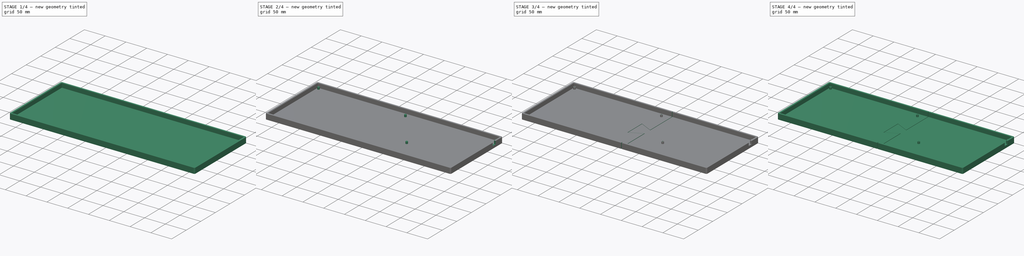
[diagram: build sequence overview — one tinted view per stage of 4, left to right]
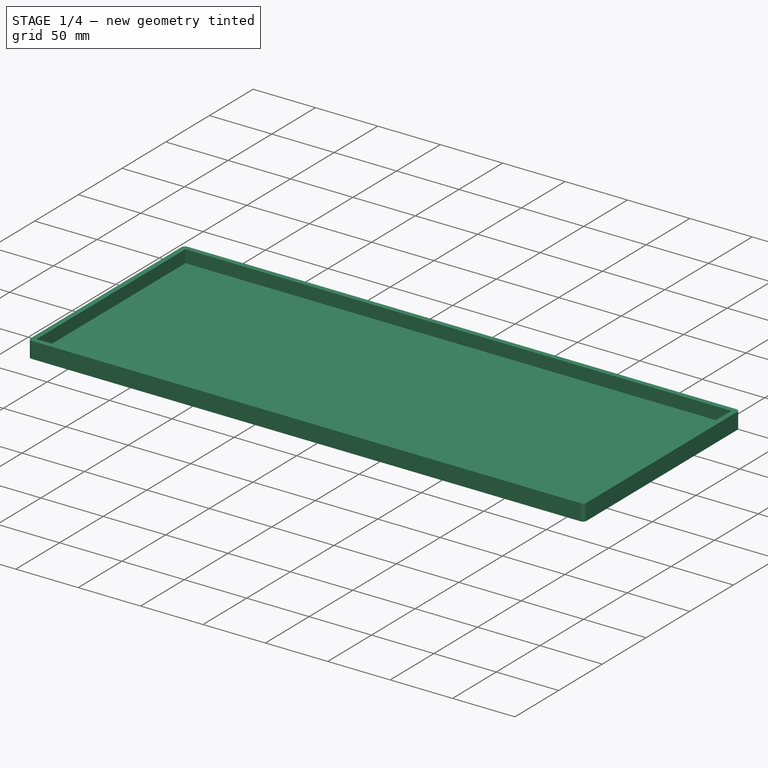
[diagram: stage 1 of 4 — iso view after this stage's code; geometry added in this stage tinted green]
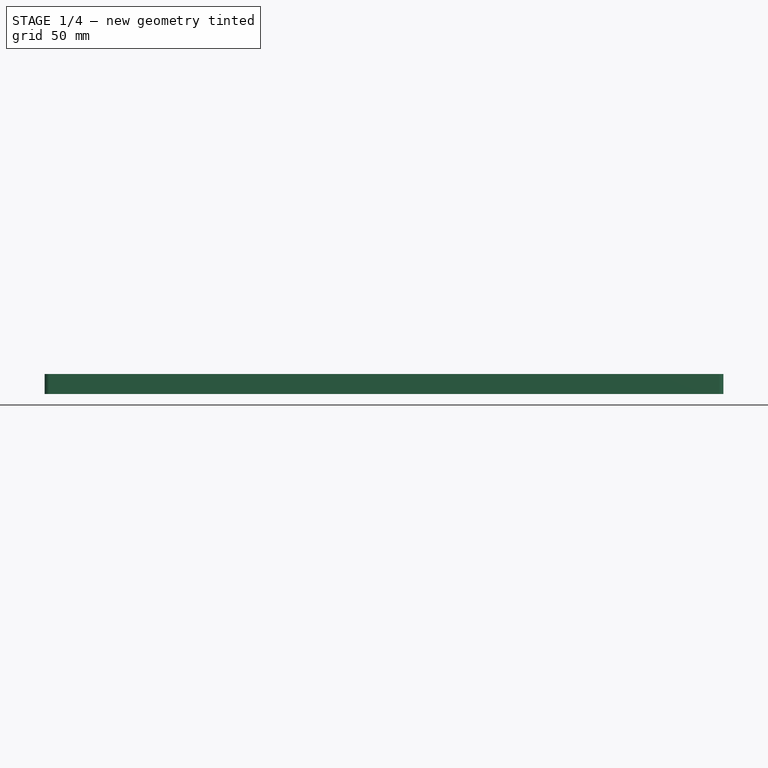
[diagram: stage 1 of 4 — front view after this stage's code; geometry added in this stage tinted green]
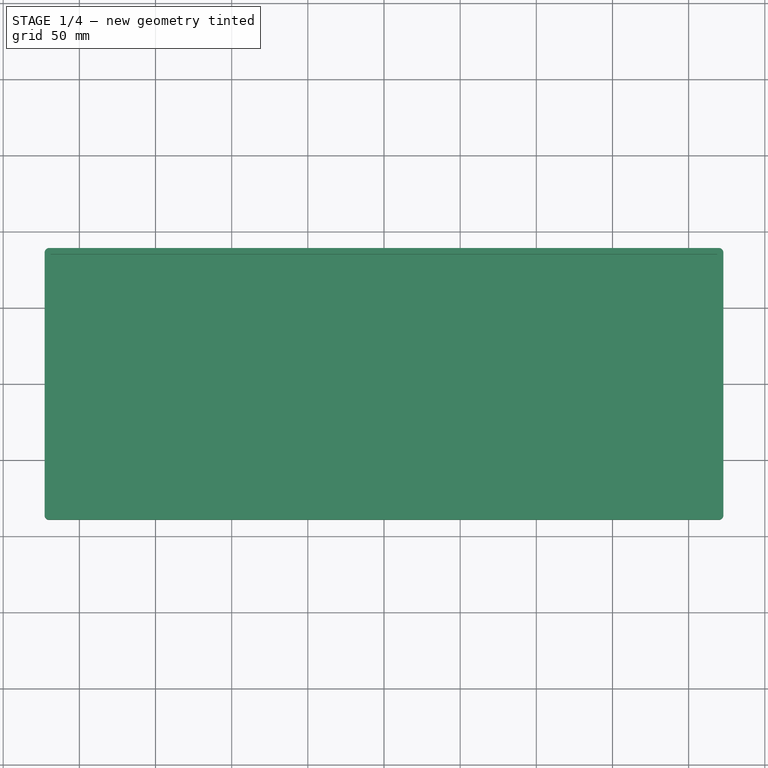
[diagram: stage 1 of 4 — top view after this stage's code; geometry added in this stage tinted green]
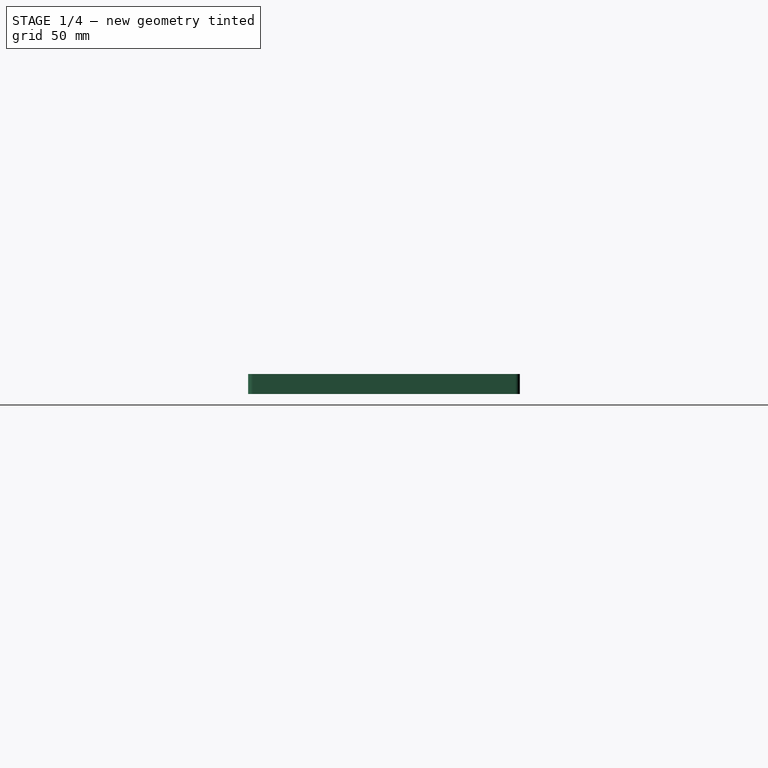
[diagram: stage 1 of 4 — right view after this stage's code; geometry added in this stage tinted green]
FCSTD DOCUMENT  (FreeCAD 1.1R20260223 (Git shallow))
Label: Case_bottom
License: All rights reserved
LicenseURL: https://en.wikipedia.org/wiki/All_rights_reserved
objects: Sketcher::SketchObject×6, PartDesign::Pocket×4, PartDesign::Pad×2, PartDesign::Body×2, Part::FeaturePython×2, App::Point×2, Spreadsheet::Sheet×1, PartDesign::FeatureBase×1, App::DocumentObjectGroup×1
note: 36 computed .brp shape members not serialized (recipe doc carries the construction recipe); baked Part::Feature solids carry a one-line shape summary decoded from their .brp

FEATURE [Sketcher::SketchObject] Sketch
  ArcFitTolerance = 1e-06
  AttachmentSupport = -> [XY_Plane]
  ExternalTypes = [0]
  FullyConstrained = true
  MakeInternals = false
  MapMode = 5
  expr: Constraints[26] = <<globals>>.Filet
  expr: Constraints[4] = <<globals>>.OutsideWidth
  expr: Constraints[5] = <<globals>>.OutsideLength
  sketch-geometry (12):
    g0: LineSegment StartX=-219.8 StartY=-89.2 StartZ=0 EndX=219.8 EndY=-89.2 EndZ=0
    g1: LineSegment StartX=222.8 StartY=-86.2 StartZ=0 EndX=222.8 EndY=86.2 EndZ=0
    g2: LineSegment StartX=219.8 StartY=89.2 StartZ=0 EndX=-219.8 EndY=89.2 EndZ=0
    g3: LineSegment StartX=-222.8 StartY=86.2 StartZ=0 EndX=-222.8 EndY=-86.2 EndZ=0
    g4: ArcOfCircle CenterX=-219.8 CenterY=-86.2 CenterZ=0 NormalX=0 NormalY=0 NormalZ=1 AngleXU=0 Radius=3 StartAngle=3.14159 EndAngle=4.71239
    g5: GeomPoint [constr] X=-222.8 Y=-89.2 Z=0
    g6: ArcOfCircle CenterX=-219.8 CenterY=86.2 CenterZ=0 NormalX=0 NormalY=0 NormalZ=1 AngleXU=0 Radius=3 StartAngle=1.5708 EndAngle=3.14159
    g7: GeomPoint [constr] X=-222.8 Y=89.2 Z=0
    g8: ArcOfCircle CenterX=219.8 CenterY=86.2 CenterZ=0 NormalX=0 NormalY=0 NormalZ=1 AngleXU=0 Radius=3 StartAngle=-9e-16 EndAngle=1.5708
    g9: GeomPoint [constr] X=222.8 Y=89.2 Z=0
    g10: ArcOfCircle CenterX=219.8 CenterY=-86.2 CenterZ=0 NormalX=0 NormalY=0 NormalZ=1 AngleXU=0 Radius=3 StartAngle=4.71239 EndAngle=6.28319
    g11: GeomPoint [constr] X=222.8 Y=-89.2 Z=0
  constraints (27):
    c: Horizontal(g0)
    c: Horizontal(g2)
    c: Vertical(g1)
    c: Vertical(g3)
    c: Distance(g11,g5) = 445.6
    c: Distance(g5,g7) = 178.4
    c: Symmetric(g7,g11,g-1)
    c: PointOnObject(g5,g0)
    c: PointOnObject(g5,g3)
    c: Tangent(g0,g4) = -1.5708
    c: Tangent(g3,g4) = -1.5708
    c: PointOnObject(g7,g2)
    c: PointOnObject(g7,g3)
    c: Tangent(g2,g6) = -1.5708
    c: Tangent(g3,g6) = -1.5708
    c: PointOnObject(g9,g1)
    c: PointOnObject(g9,g2)
    c: Tangent(g1,g8) = -1.5708
    c: Tangent(g2,g8) = -1.5708
    c: PointOnObject(g11,g0)
    c: PointOnObject(g11,g1)
    c: Tangent(g0,g10) = -1.5708
    c: Tangent(g1,g10) = -1.5708
    c: Equal(g4,g10)
    c: Equal(g4,g6)
    c: Equal(g4,g8)
    c: Radius(g4) = 3
FEATURE [PartDesign::Pad] Pad
  Direction = (0,0,1)
  Length = 13.1
  Length2 = 10
  Profile = -> Sketch
  ReferenceAxis = -> Sketch [N_Axis]
  Refine = true
  SideType = 0
  Suppressed = false
  Type = 0
  Type2 = 0
  expr: Length = <<globals>>.TotalHight
FEATURE [Sketcher::SketchObject] Sketch001
  ArcFitTolerance = 1e-06
  AttachmentSupport = -> [Pad]
  ExternalTypes = [0]
  FullyConstrained = true
  MakeInternals = false
  MapMode = 5
  Placement = pos=(0,0,13.1) rot=(0,0,1;0rad)
  expr: Constraints[9] = <<globals>>.InsideLength
  sketch-geometry (4):
    g0: LineSegment StartX=-218.8 StartY=-85.2 StartZ=0 EndX=218.8 EndY=-85.2 EndZ=0
    g1: LineSegment StartX=218.8 StartY=-85.2 StartZ=0 EndX=218.8 EndY=85.2 EndZ=0
    g2: LineSegment StartX=218.8 StartY=85.2 StartZ=0 EndX=-218.8 EndY=85.2 EndZ=0
    g3: LineSegment StartX=-218.8 StartY=85.2 StartZ=0 EndX=-218.8 EndY=-85.2 EndZ=0
  constraints (11):
    c: Coincident(g0,g1)
    c: Coincident(g1,g2)
    c: Coincident(g2,g3)
    c: Coincident(g3,g0)
    c: Horizontal(g0)
    c: Horizontal(g2)
    c: Vertical(g1)
    c: Vertical(g3)
    c: Distance(g1,g3) = 437.6
    c: Distance(g0,g2) = 170.4
    c: Symmetric(g2,g0,g-1)
FEATURE [PartDesign::Pocket] Pocket
  BaseFeature = -> Pad
  Direction = (0,0,-1)
  Length = 10.1
  Length2 = 5
  Profile = -> Sketch001
  ReferenceAxis = -> Sketch001 [N_Axis]
  Refine = true
  SideType = 0
  Suppressed = false
  Type = 0
  Type2 = 0
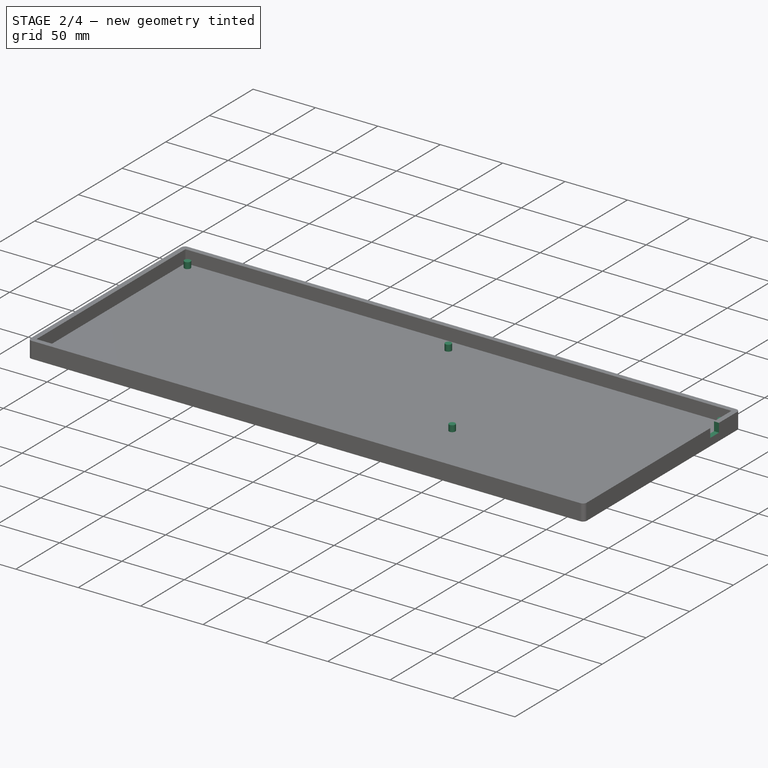
[diagram: stage 2 of 4 — iso view after this stage's code; geometry added in this stage tinted green]
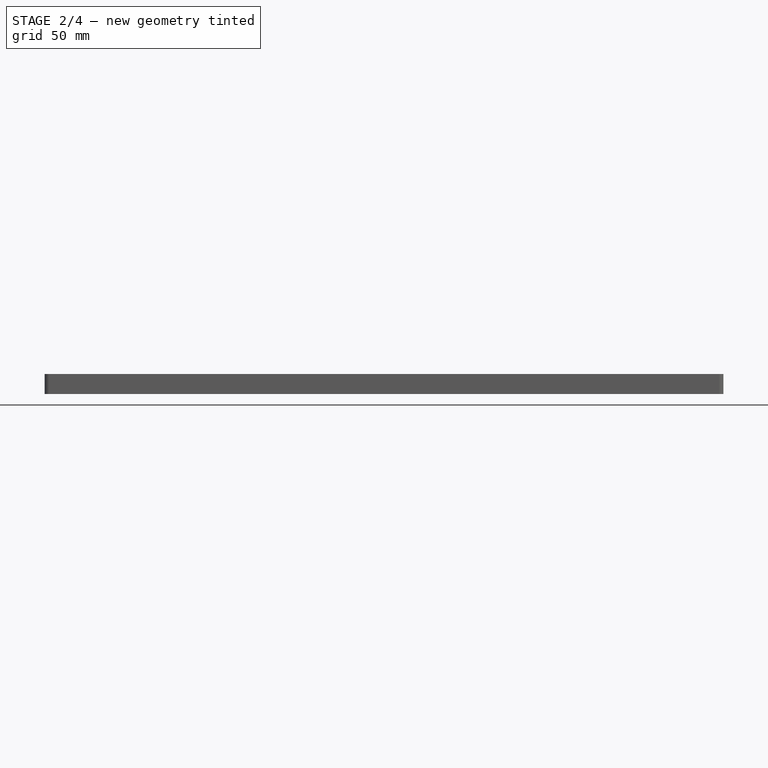
[diagram: stage 2 of 4 — front view after this stage's code; geometry added in this stage tinted green]
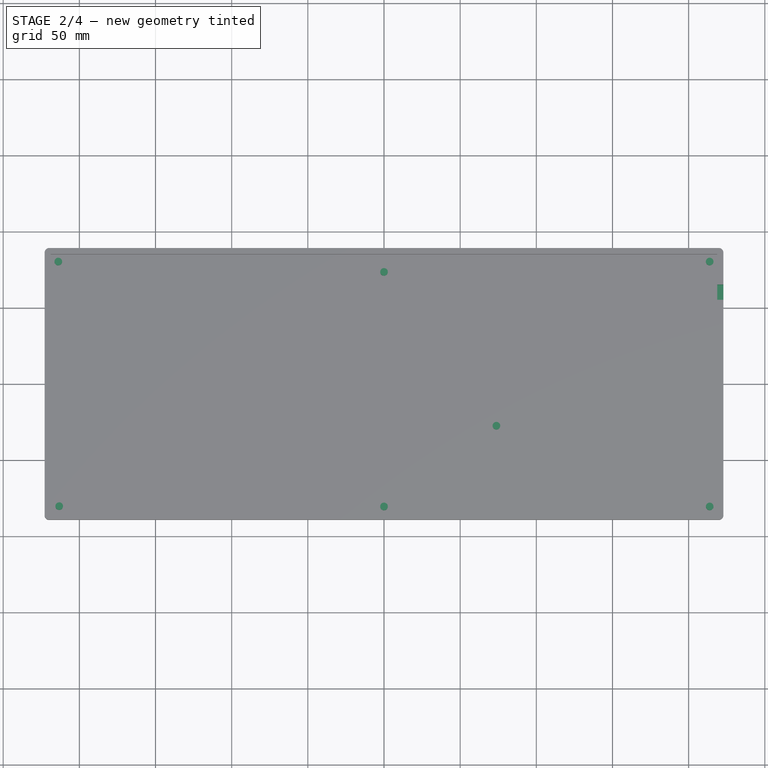
[diagram: stage 2 of 4 — top view after this stage's code; geometry added in this stage tinted green]
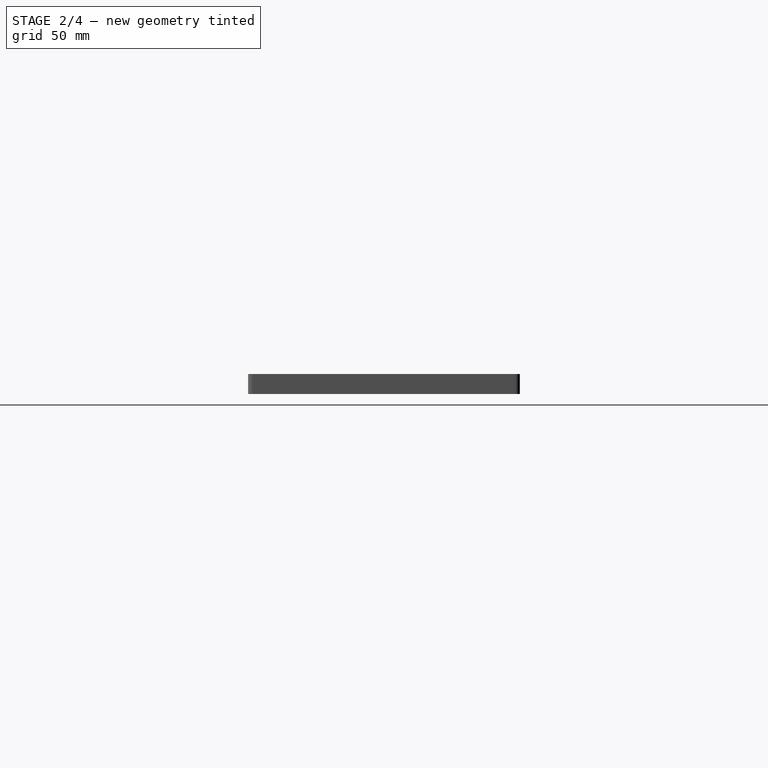
[diagram: stage 2 of 4 — right view after this stage's code; geometry added in this stage tinted green]
FEATURE [Sketcher::SketchObject] Sketch002
  ArcFitTolerance = 1e-06
  AttachmentSupport = -> [Pocket]
  ExternalGeometry = -> [Pocket]
  ExternalTypes = [0]
  FullyConstrained = true
  MakeInternals = false
  MapMode = 5
  Placement = pos=(0,0,3) rot=(0,0,1;0rad)
  expr: Constraints[0] = <<globals>>.StandoffOD
  expr: Constraints[14] = <<globals>>.InsideLength
  expr: Constraints[15] = <<globals>>.InsideWidth
  sketch-geometry (25):
    g0: Circle CenterX=5e-15 CenterY=-80.4 CenterZ=0 NormalX=0 NormalY=0 NormalZ=1 AngleXU=0 Radius=2.5
    g1: Circle CenterX=-213.8 CenterY=80.4 CenterZ=0 NormalX=0 NormalY=0 NormalZ=1 AngleXU=0 Radius=2.5
    g2: Circle CenterX=6.3e-15 CenterY=73.6 CenterZ=0 NormalX=0 NormalY=0 NormalZ=1 AngleXU=0 Radius=2.5
    g3: Circle CenterX=-213.2 CenterY=-80.2 CenterZ=0 NormalX=0 NormalY=0 NormalZ=1 AngleXU=0 Radius=2.5
    g4: Circle CenterX=213.8 CenterY=-80.4 CenterZ=0 NormalX=0 NormalY=0 NormalZ=1 AngleXU=0 Radius=2.5
    g5: Circle CenterX=213.8 CenterY=80.4 CenterZ=0 NormalX=0 NormalY=0 NormalZ=1 AngleXU=0 Radius=2.5
    g6: LineSegment [constr] StartX=-218.8 StartY=85.2 StartZ=0 EndX=-218.8 EndY=-85.2 EndZ=0
    g7: LineSegment [constr] StartX=-218.8 StartY=-85.2 StartZ=0 EndX=218.8 EndY=-85.2 EndZ=0
    g8: LineSegment [constr] StartX=218.8 StartY=-85.2 StartZ=0 EndX=218.8 EndY=85.2 EndZ=0
    g9: LineSegment [constr] StartX=218.8 StartY=85.2 StartZ=0 EndX=-218.8 EndY=85.2 EndZ=0
    g10: LineSegment [constr] StartX=-218.8 StartY=-80.2 StartZ=0 EndX=-213.2 EndY=-80.2 EndZ=0
    g11: LineSegment [constr] StartX=-213.2 StartY=-80.2 StartZ=0 EndX=-213.2 EndY=-85.2 EndZ=0
    g12: LineSegment [constr] StartX=-218.8 StartY=80.4 StartZ=0 EndX=-213.8 EndY=80.4 EndZ=0
    g13: LineSegment [constr] StartX=-213.8 StartY=80.4 StartZ=0 EndX=-213.8 EndY=85.2 EndZ=0
    g14: LineSegment [constr] StartX=213.8 StartY=-80.4 StartZ=0 EndX=218.8 EndY=-80.4 EndZ=0
    g15: LineSegment [constr] StartX=213.8 StartY=-80.4 StartZ=0 EndX=213.8 EndY=-85.2 EndZ=0
    g16: LineSegment [constr] StartX=213.8 StartY=80.4 StartZ=0 EndX=218.8 EndY=80.4 EndZ=0
    g17: LineSegment [constr] StartX=213.8 StartY=80.4 StartZ=0 EndX=213.8 EndY=85.2 EndZ=0
    g18: Circle CenterX=73.8 CenterY=-27.4 CenterZ=0 NormalX=0 NormalY=0 NormalZ=1 AngleXU=0 Radius=2.5
    g19: LineSegment [constr] StartX=5e-15 StartY=-80.4 StartZ=0 EndX=5e-15 EndY=-85.2 EndZ=0
    g20: LineSegment [constr] StartX=5e-15 StartY=-80.4 StartZ=0 EndX=218.8 EndY=-80.4 EndZ=0
    g21: LineSegment [constr] StartX=73.8 StartY=-27.4 StartZ=0 EndX=218.8 EndY=-27.4 EndZ=0
    g22: LineSegment [constr] StartX=73.8 StartY=-27.4 StartZ=0 EndX=73.8 EndY=-85.2 EndZ=0
    g23: LineSegment [constr] StartX=6.3e-15 StartY=73.6 StartZ=0 EndX=6.3e-15 EndY=85.2 EndZ=0
    g24: LineSegment [constr] StartX=6.3e-15 StartY=73.6 StartZ=0 EndX=-218.8 EndY=73.6 EndZ=0
  constraints (72):
    c: Diameter(g0) = 5
    c: Diameter(g1) = 5
    c: Diameter(g2) = 5
    c: Diameter(g3) = 5
    c: Diameter(g4) = 5
    c: Diameter(g5) = 5
    c: Coincident(g6,g7)
    c: Coincident(g7,g8)
    c: Coincident(g8,g9)
    c: Coincident(g9,g6)
    c: Vertical(g6)
    c: Vertical(g8)
    c: Horizontal(g7)
    c: Horizontal(g9)
    c: Distance(g6,g6) = 170.4
    c: DistanceX(g9,g9) = 437.6
    c: Symmetric(g8,g6,g-1)
    c: PointOnObject(g10,g6)
    c: Coincident(g10,g3)
    c: Coincident(g11,g3)
    c: PointOnObject(g11,g7)
    c: Vertical(g11)
    c: DistanceX(g10,g10) = 5.6
    c: DistanceY(g11,g11) = 5
    c: Horizontal(g10)
    c: PointOnObject(g12,g6)
    c: Coincident(g12,g1)
    c: Horizontal(g12)
    c: DistanceX(g12,g12) = 5
    c: Coincident(g13,g1)
    c: PointOnObject(g13,g9)
    c: Vertical(g13)
    c: DistanceY(g13,g13) = 4.8
    c: Coincident(g14,g4)
    c: PointOnObject(g14,g8)
    c: Coincident(g15,g4)
    c: PointOnObject(g15,g7)
    c: Vertical(g15)
    c: Horizontal(g14)
    c: DistanceX(g14,g14) = 5
    c: DistanceY(g15,g15) = 4.8
    c: Coincident(g16,g5)
    c: PointOnObject(g16,g8)
    c: Horizontal(g16)
    c: Coincident(g17,g5)
    c: PointOnObject(g17,g9)
    c: Vertical(g17)
    c: DistanceY(g17,g17) = 4.8
    c: DistanceX(g16,g16) = 5
    c: Diameter(g18) = 5
    c: Coincident(g19,g0)
    c: Symmetric(g7,g7,g19)
    c: Vertical(g19)
    c: Coincident(g20,g0)
    c: PointOnObject(g20,g8)
    c: Horizontal(g20)
    c: DistanceY(g19,g19) = 4.8
    c: Coincident(g21,g18)
    c: PointOnObject(g21,g8)
    c: Horizontal(g21)
    c: Coincident(g22,g18)
    c: PointOnObject(g22,g7)
    c: Vertical(g22)
    c: DistanceX(g21,g21) = 145
    c: DistanceY(g22,g22) = 57.8
    c: Coincident(g23,g2)
    c: Symmetric(g9,g9,g23)
    c: Vertical(g23)
    c: Coincident(g24,g2)
    c: PointOnObject(g24,g6)
    c: Horizontal(g24)
    c: DistanceY(g23,g23) = 11.6
FEATURE [Spreadsheet::Sheet] Spreadsheet  label="globals"
  cells = A1='outside width; B1(OutsideWidth)==445.6 mm; A2='outside length; B2(OutsideLength)==178.4 mm; A3='inside width; B3(InsideWidth)==437.6 mm; A4='inside length; B4(InsideLength)==170.4 mm; A5='filet; B5(Filet)==3 mm; A6='standoff hight; B6(StandoffHight)==5 mm; A7='Total hight; B7(TotalHight)==13.1 mm; A8='Standoff Outer Diamator; B8(StandoffOD)==5 mm; A9='Standoff Inner Diamator; B9(StandoffID)==2.1 mm
FEATURE [PartDesign::Pad] Pad001
  BaseFeature = -> Pocket
  Direction = (0,0,1)
  Length = 5
  Length2 = 10
  Profile = -> Sketch002
  ReferenceAxis = -> Sketch002 [N_Axis]
  Refine = true
  SideType = 0
  Suppressed = false
  Type = 0
  Type2 = 0
  expr: Length = <<globals>>.StandoffHight
FEATURE [Sketcher::SketchObject] Sketch003
  ArcFitTolerance = 1e-06
  AttachmentSupport = -> [Pad001]
  ExternalGeometry = -> [Pad001]
  ExternalTypes = [0]
  FullyConstrained = true
  MakeInternals = false
  MapMode = 5
  Placement = pos=(222.8,0,0) rot=(0.57735,0.57735,0.57735;2.0944rad)
  sketch-geometry (6):
    g0: LineSegment StartX=55.2 StartY=14 StartZ=0 EndX=55.2 EndY=6 EndZ=0
    g1: LineSegment StartX=55.2 StartY=6 StartZ=0 EndX=65.2 EndY=6 EndZ=0
    g2: LineSegment StartX=65.2 StartY=6 StartZ=0 EndX=65.2 EndY=14 EndZ=0
    g3: LineSegment StartX=65.2 StartY=14 StartZ=0 EndX=55.2 EndY=14 EndZ=0
    g4: LineSegment [constr] StartX=65.2 StartY=14 StartZ=0 EndX=89.2 EndY=14 EndZ=0
    g5: LineSegment [constr] StartX=65.2 StartY=6 StartZ=0 EndX=65.2 EndY=0 EndZ=0
  constraints (18):
    c: Coincident(g0,g1)
    c: Coincident(g1,g2)
    c: Coincident(g2,g3)
    c: Coincident(g3,g0)
    c: Vertical(g0)
    c: Vertical(g2)
    c: Horizontal(g1)
    c: Horizontal(g3)
    c: Distance(g0,g2) = 10
    c: Distance(g1,g3) = 8
    c: Coincident(g4,g2)
    c: PointOnObject(g4,g-3)
    c: Horizontal(g4)
    c: DistanceX(g4,g4) = 24
    c: Coincident(g5,g1)
    c: PointOnObject(g5,g-5)
    c: Vertical(g5)
    c: DistanceY(g5,g5) = 6
FEATURE [PartDesign::Pocket] Pocket001
  BaseFeature = -> Pad001
  Direction = (-1,0,0)
  Length = 5
  Length2 = 5
  Profile = -> Sketch003
  ReferenceAxis = -> Sketch003 [N_Axis]
  Refine = true
  SideType = 0
  Suppressed = false
  Type = 0
  Type2 = 0
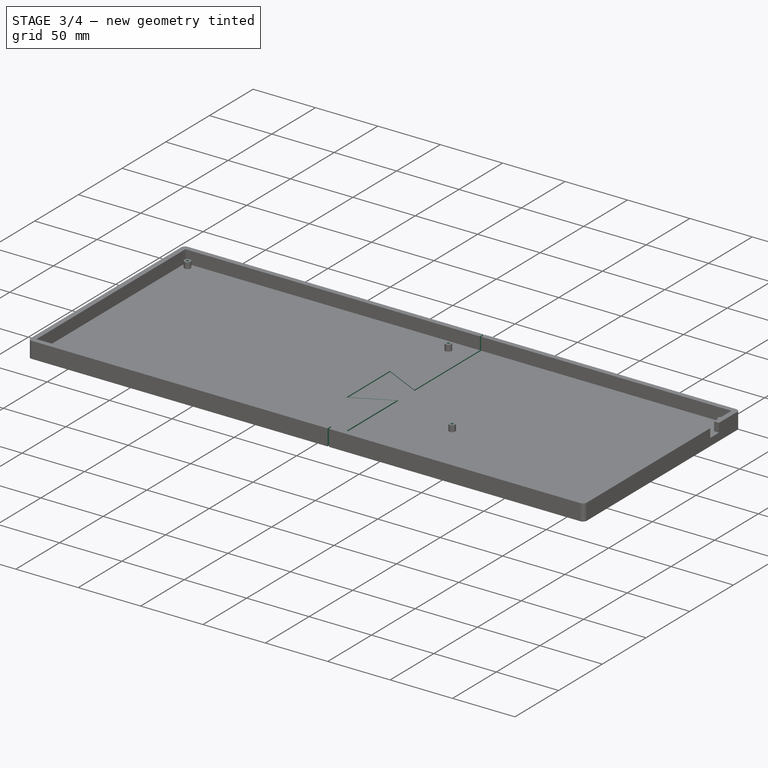
[diagram: stage 3 of 4 — iso view after this stage's code; geometry added in this stage tinted green]
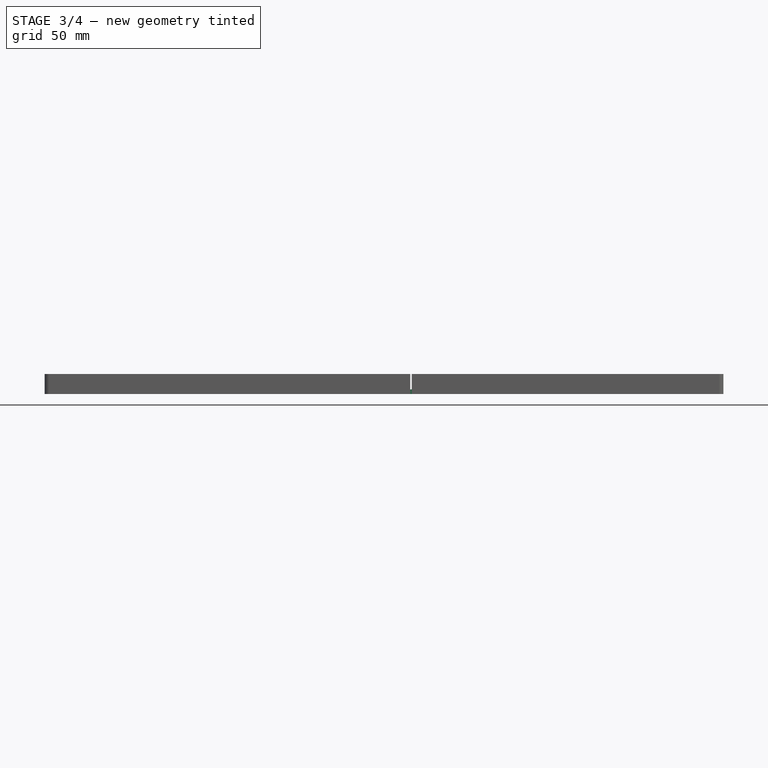
[diagram: stage 3 of 4 — front view after this stage's code; geometry added in this stage tinted green]
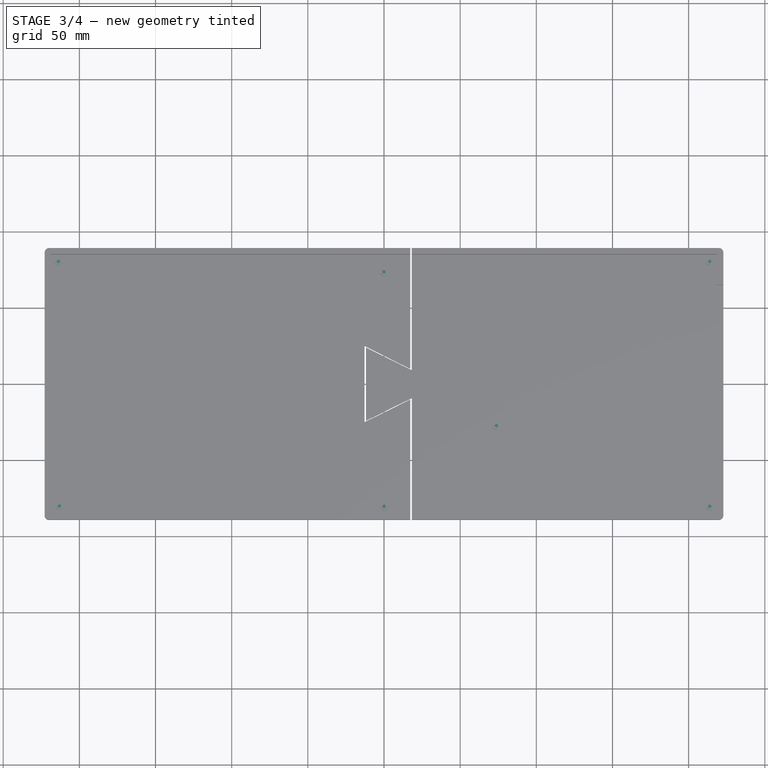
[diagram: stage 3 of 4 — top view after this stage's code; geometry added in this stage tinted green]
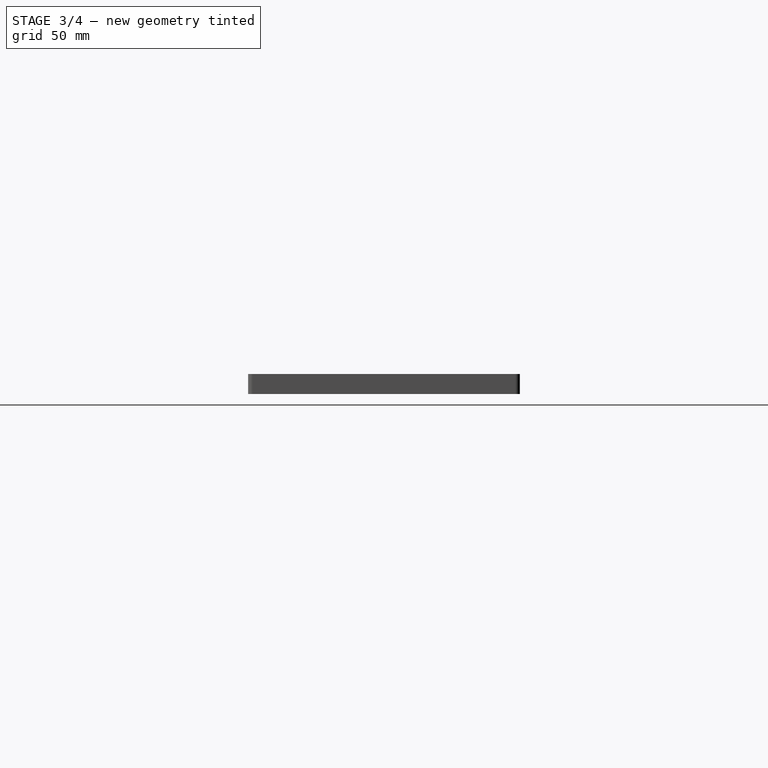
[diagram: stage 3 of 4 — right view after this stage's code; geometry added in this stage tinted green]
FEATURE [Sketcher::SketchObject] Sketch004
  ArcFitTolerance = 1e-06
  AttachmentOffset = pos=(0,0,8) rot=(0,0,1;0rad)
  AttachmentSupport = -> [XY_Plane]
  ExternalGeometry = -> [Pocket001]
  ExternalTypes = [0]
  FullyConstrained = true
  MakeInternals = false
  MapMode = 5
  Placement = pos=(0,0,8) rot=(0,0,1;0rad)
  expr: Constraints[0] = <<globals>>.StandoffID
  sketch-geometry (7):
    g0: Circle CenterX=213.8 CenterY=80.4 CenterZ=0 NormalX=0 NormalY=0 NormalZ=1 AngleXU=0 Radius=1.05
    g1: Circle CenterX=0 CenterY=-80.4 CenterZ=0 NormalX=0 NormalY=0 NormalZ=1 AngleXU=0 Radius=1.1
    g2: Circle CenterX=-213.2 CenterY=-80.2 CenterZ=0 NormalX=0 NormalY=0 NormalZ=1 AngleXU=0 Radius=1.1
    g3: Circle CenterX=213.8 CenterY=-80.4 CenterZ=0 NormalX=0 NormalY=0 NormalZ=1 AngleXU=0 Radius=1.1
    g4: Circle CenterX=73.8 CenterY=-27.4 CenterZ=0 NormalX=0 NormalY=0 NormalZ=1 AngleXU=0 Radius=1.1
    g5: Circle CenterX=0 CenterY=73.6 CenterZ=0 NormalX=0 NormalY=0 NormalZ=1 AngleXU=0 Radius=1.1
    g6: Circle CenterX=-213.8 CenterY=80.4 CenterZ=0 NormalX=0 NormalY=0 NormalZ=1 AngleXU=0 Radius=1.1
  constraints (14):
    c: Diameter(g0) = 2.1
    c: Diameter(g1) = 2.2
    c: Diameter(g2) = 2.2
    c: Diameter(g3) = 2.2
    c: Diameter(g4) = 2.2
    c: Diameter(g5) = 2.2
    c: Diameter(g6) = 2.2
    c: Coincident(g-8,g6)
    c: Coincident(g2,g-9)
    c: Coincident(g5,g-7)
    c: Coincident(g1,g-4)
    c: Coincident(g0,g-6)
    c: Coincident(g4,g-3)
    c: Coincident(g3,g-5)
FEATURE [PartDesign::Pocket] Pocket002
  BaseFeature = -> Pocket001
  Direction = (0,0,-1)
  Length = 4
  Length2 = 5
  Profile = -> Sketch004
  ReferenceAxis = -> Sketch004 [N_Axis]
  Refine = true
  SideType = 0
  Suppressed = false
  Type = 0
  Type2 = 0
FEATURE [PartDesign::Body] Body
  AllowCompound = false
  Group = -> [Sketch,Pad,Sketch001,Pocket,Sketch002,Pad001,Sketch003,Pocket001,Sketch004,Pocket002]
  Origin = -> Origin
  Tip = -> Pocket002
FEATURE [PartDesign::FeatureBase] Clone
  BaseFeature = -> Body
  Suppressed = false
FEATURE [Sketcher::SketchObject] Sketch007
  ArcFitTolerance = 1e-06
  AttachmentOffset = pos=(0,0,13.1) rot=(0,0,1;0rad)
  AttachmentSupport = -> [XY_Plane001]
  ExternalTypes = [0]
  FullyConstrained = true
  MakeInternals = false
  MapMode = 5
  Placement = pos=(0,0,13.1) rot=(0,0,1;0rad)
  expr: .AttachmentOffset.Base.z = <<globals>>.TotalHight
  expr: Constraints[8] = <<globals>>.OutsideWidth
  sketch-geometry (20):
    g0: LineSegment [constr] StartX=-222.8 StartY=90.15 StartZ=0 EndX=-222.8 EndY=-90.15 EndZ=0
    g1: LineSegment [constr] StartX=-222.8 StartY=-90.15 StartZ=0 EndX=222.8 EndY=-90.15 EndZ=0
    g2: LineSegment [constr] StartX=222.8 StartY=-90.15 StartZ=0 EndX=222.8 EndY=90.15 EndZ=0
    g3: LineSegment [constr] StartX=222.8 StartY=90.15 StartZ=0 EndX=-222.8 EndY=90.15 EndZ=0
    g4: LineSegment StartX=18.2 StartY=90.15 StartZ=0 EndX=18.2 EndY=9.15 EndZ=0
    g5: LineSegment StartX=18.2 StartY=9.15 StartZ=0 EndX=-11.8065 EndY=24 EndZ=0
    g6: LineSegment StartX=-11.8065 StartY=24 StartZ=0 EndX=-11.8065 EndY=-24 EndZ=0
    g7: LineSegment StartX=-11.8065 StartY=-24 StartZ=0 EndX=18.3338 EndY=-9.15 EndZ=0
    g8: LineSegment StartX=18.3338 StartY=-9.15 StartZ=0 EndX=18.3338 EndY=-90.15 EndZ=0
    g9: LineSegment StartX=17.2 StartY=90.15 StartZ=0 EndX=17.2 EndY=10.15 EndZ=0
    g10: LineSegment StartX=17.2 StartY=10.15 StartZ=0 EndX=-12.8 EndY=25 EndZ=0
    g11: LineSegment StartX=-12.8 StartY=25 StartZ=0 EndX=-12.8 EndY=-25 EndZ=0
    g12: LineSegment StartX=-12.8 StartY=-25 StartZ=0 EndX=17.2 EndY=-10.15 EndZ=0
    g13: LineSegment StartX=17.2 StartY=-10.15 StartZ=0 EndX=17.2 EndY=-90.15 EndZ=0
    g14: LineSegment StartX=18.3338 StartY=-90.15 StartZ=0 EndX=17.2 EndY=-90.15 EndZ=0
    g15: LineSegment StartX=18.2 StartY=90.15 StartZ=0 EndX=17.2 EndY=90.15 EndZ=0
    g16: LineSegment [constr] StartX=111.975 StartY=-37.2587 StartZ=0 EndX=112.975 EndY=-37.2587 EndZ=0
    g17: LineSegment [constr] StartX=-6.07768 StartY=-21.1775 StartZ=0 EndX=-5.07768 EndY=-21.1775 EndZ=0
    g18: LineSegment [constr] StartX=-12.8 StartY=-6.9e-15 StartZ=0 EndX=-222.8 EndY=-6.9e-15 EndZ=0
    g19: LineSegment [constr] StartX=-12.8 StartY=-8.2e-15 StartZ=0 EndX=-11.8065 EndY=-8.2e-15 EndZ=0
  constraints (59):
    c: Coincident(g0,g1)
    c: Coincident(g1,g2)
    c: Coincident(g2,g3)
    c: Coincident(g3,g0)
    c: Vertical(g0)
    c: Vertical(g2)
    c: Horizontal(g1)
    c: Horizontal(g3)
    c: DistanceX(g1,g1) = 445.6
    c: DistanceY(g2,g2) = 180.3
    c: Symmetric(g0,g1,g-1)
    c: PointOnObject(g4,g3)
    c: Vertical(g4)
    c: Coincident(g4,g5)
    c: Coincident(g5,g6)
    c: Vertical(g6)
    c: Coincident(g6,g7)
    c: Coincident(g7,g8)
    c: PointOnObject(g8,g1)
    c: Vertical(g8)
    c: DistanceY(g4,g4) = 81
    c: Equal(g8,g4)
    c: Vertical(g9)
    c: Coincident(g9,g10)
    c: Coincident(g10,g11)
    c: Vertical(g11)
    c: Coincident(g11,g12)
    c: Coincident(g12,g13)
    c: Vertical(g13)
    c: DistanceY(g9,g9) = 80
    c: DistanceX(g10,g10) = 30
    c: DistanceY(g11,g11) = 50
    c: Equal(g10,g12)
    c: Equal(g13,g9)
    c: Coincident(g14,g8)
    c: Coincident(g14,g13)
    c: Horizontal(g14)
    c: Coincident(g15,g4)
    c: Coincident(g15,g9)
    c: Horizontal(g15)
    c: DistanceX(g15,g15) = 1
    c: PointOnObject(g16,g5)
    c: PointOnObject(g16,g10)
    c: Horizontal(g16)
    c: PointOnObject(g17,g7)
    c: PointOnObject(g17,g12)
    c: Horizontal(g17)
    c: DistanceX(g17,g17) = 1
    c: Equal(g17,g16)
    c: DistanceY(g6,g6) = 48
    c: Distance(g5,g5) = 33.48
    c: Distance(g7,g7) = 33.6
    c: Symmetric(g11,g11,g18)
    c: Symmetric(g0,g0,g18)
    c: Horizontal(g18)
    c: DistanceX(g18,g18) = 210
    c: Symmetric(g11,g11,g19)
    c: Symmetric(g6,g6,g19)
    c: Horizontal(g19)
FEATURE [PartDesign::Pocket] Pocket003
  BaseFeature = -> Clone
  Direction = (0,0,-1)
  Length = 5
  Length2 = 5
  Profile = -> Sketch007
  ReferenceAxis = -> Sketch007 [N_Axis]
  Refine = true
  SideType = 0
  Suppressed = false
  Type = 1
  Type2 = 0
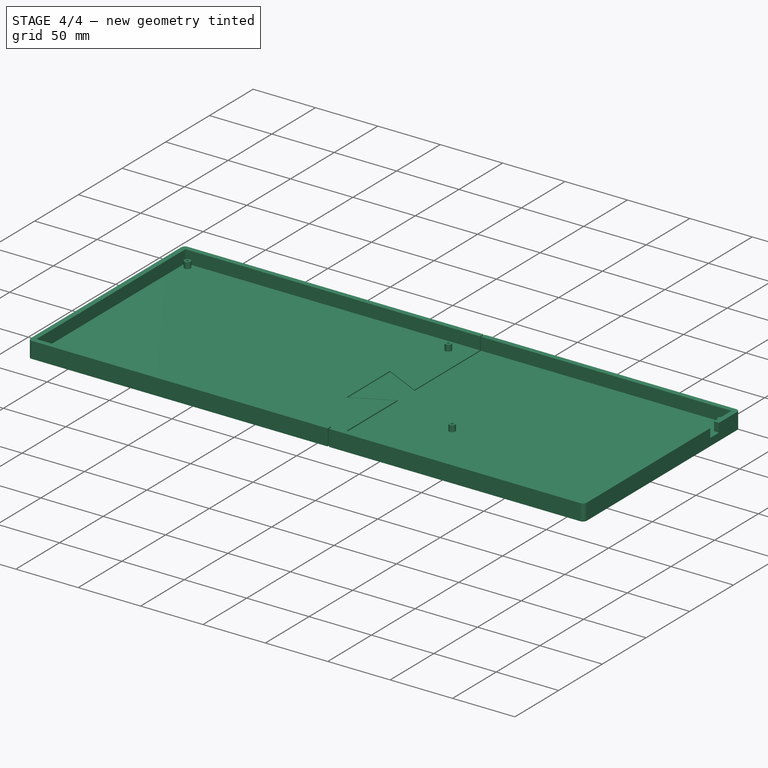
[diagram: stage 4 of 4 — iso view after this stage's code; geometry added in this stage tinted green]
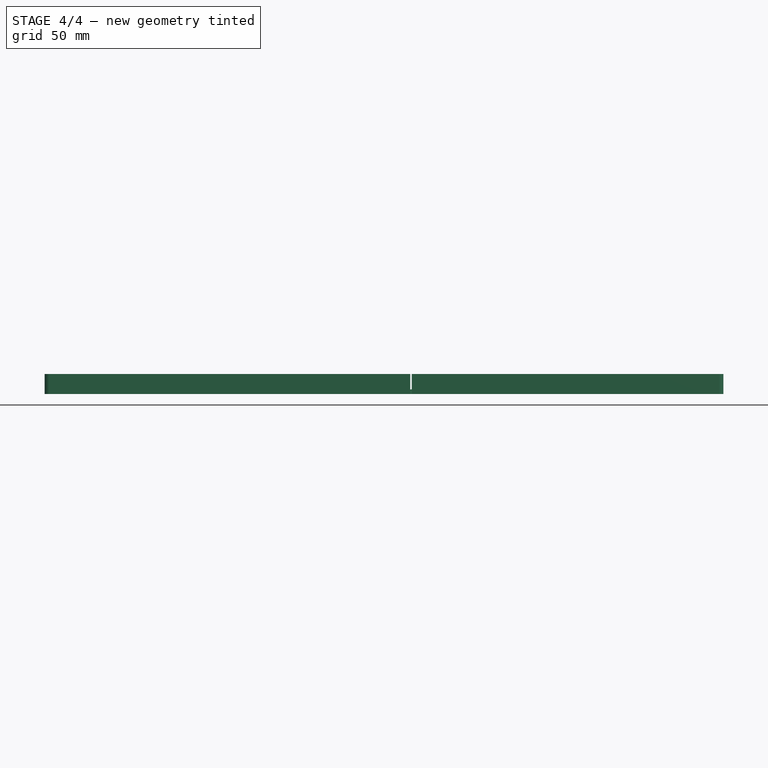
[diagram: stage 4 of 4 — front view after this stage's code; geometry added in this stage tinted green]
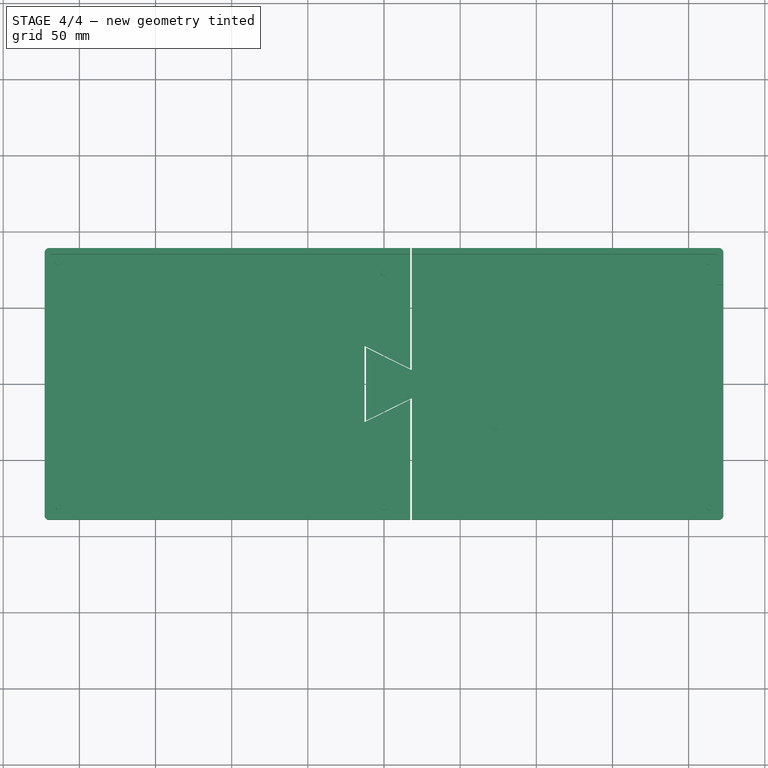
[diagram: stage 4 of 4 — top view after this stage's code; geometry added in this stage tinted green]
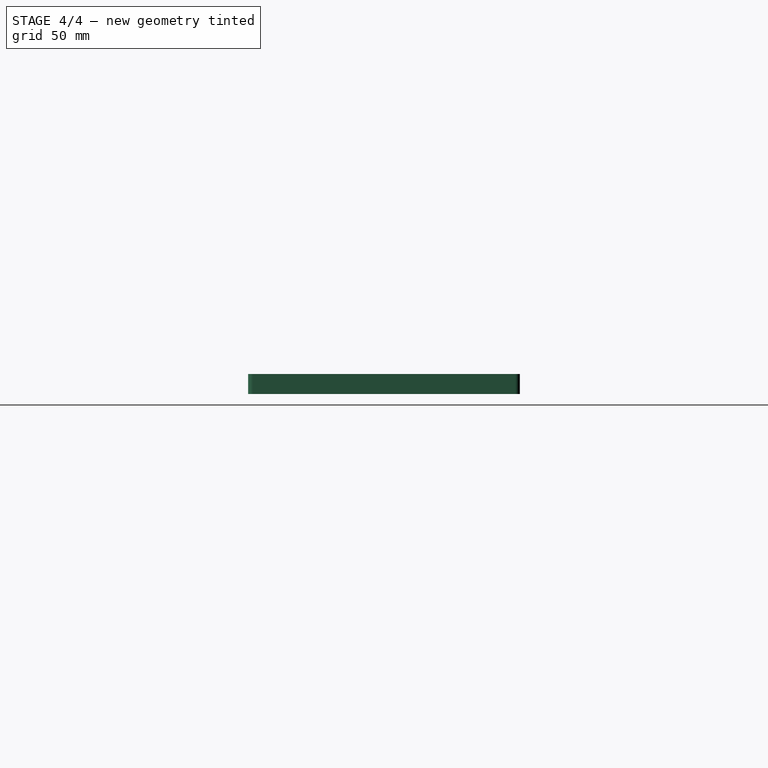
[diagram: stage 4 of 4 — right view after this stage's code; geometry added in this stage tinted green]
FEATURE [PartDesign::Body] Body001
  AllowCompound = true
  Group = -> [Clone,Sketch007,Pocket003]
  Origin = -> Origin001
  Tip = -> Pocket003
FEATURE [Part::FeaturePython] Body001_child0  label="Body001.0"  # WARN: FeaturePython — macro-defined, semantics opaque (R4)
  Base = -> Body001
  FilterType = 1
  Invert = false
  OverrideMaxVal = 0
  WindowFrom = 80
  WindowTo = 100
  items = 0
FEATURE [Part::FeaturePython] Body001_child1  label="Body001.1"  # WARN: FeaturePython — macro-defined, semantics opaque (R4)
  Base = -> Body001
  FilterType = 1
  Invert = false
  OverrideMaxVal = 0
  WindowFrom = 80
  WindowTo = 100
  items = 1
FEATURE [App::DocumentObjectGroup] GrExplode_Body001  label="Exploded Body001"
  Group = -> [Body001_child0,Body001_child1]
FEATURE [App::Point] Origin002  label="Origin"
  Role = Origin
FEATURE [App::Point] Origin003  label="Origin"
  Role = Origin
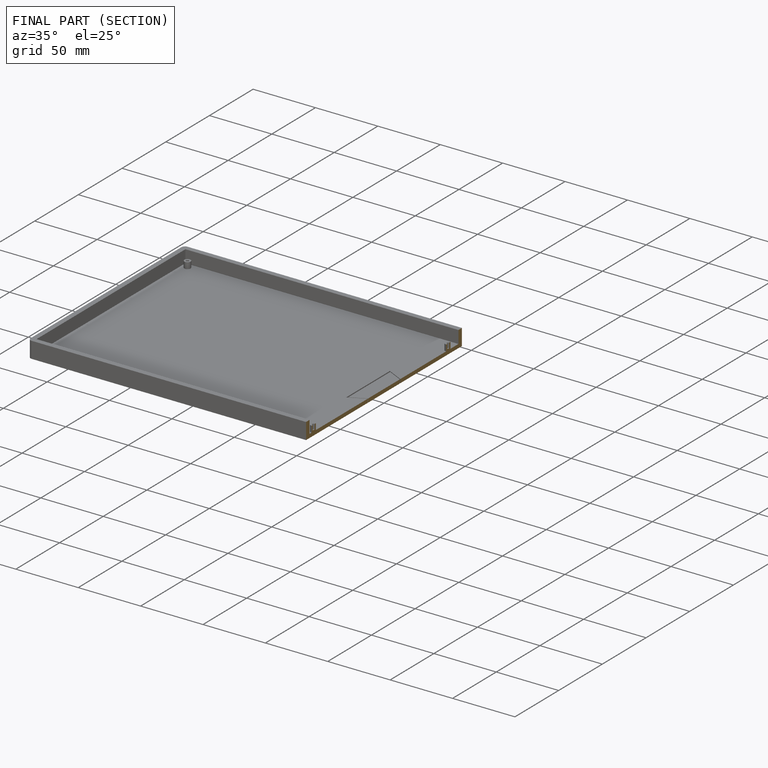
[diagram: finished part — half-section view (interior)]
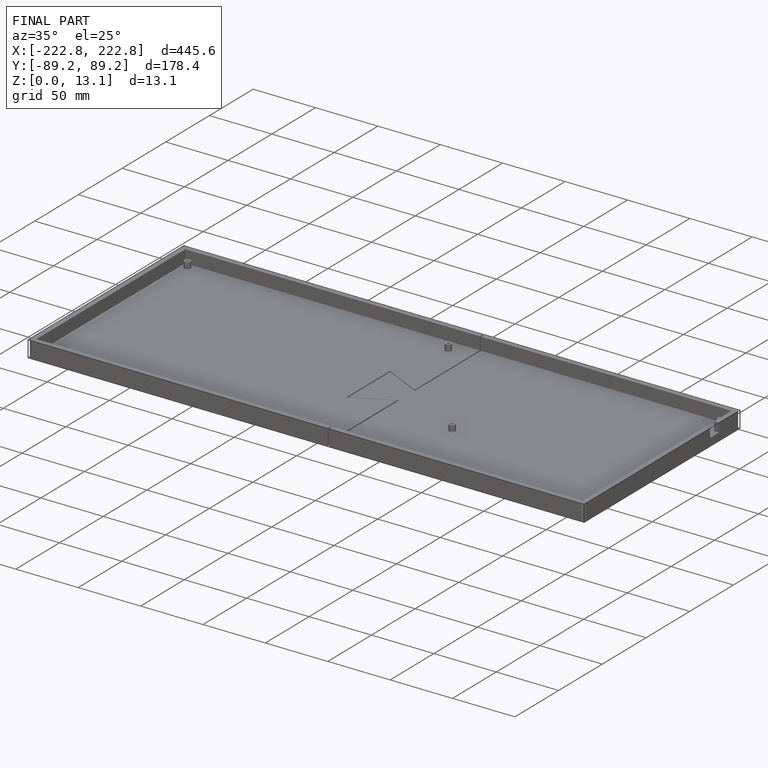
[diagram: finished part — iso view with bounding-box wireframe]
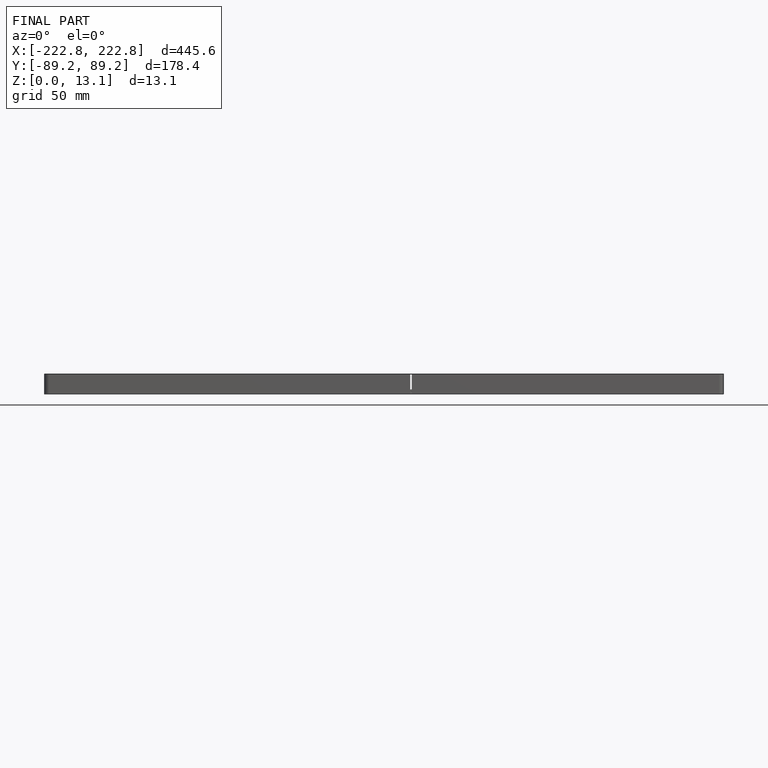
[diagram: finished part — front view with bounding-box wireframe]
